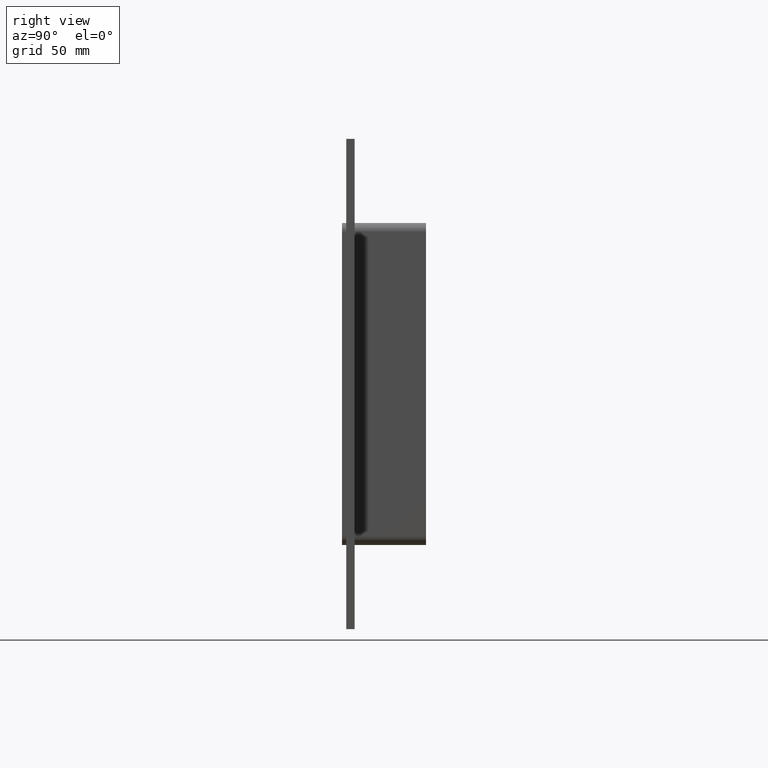
[diagram: clean part render]
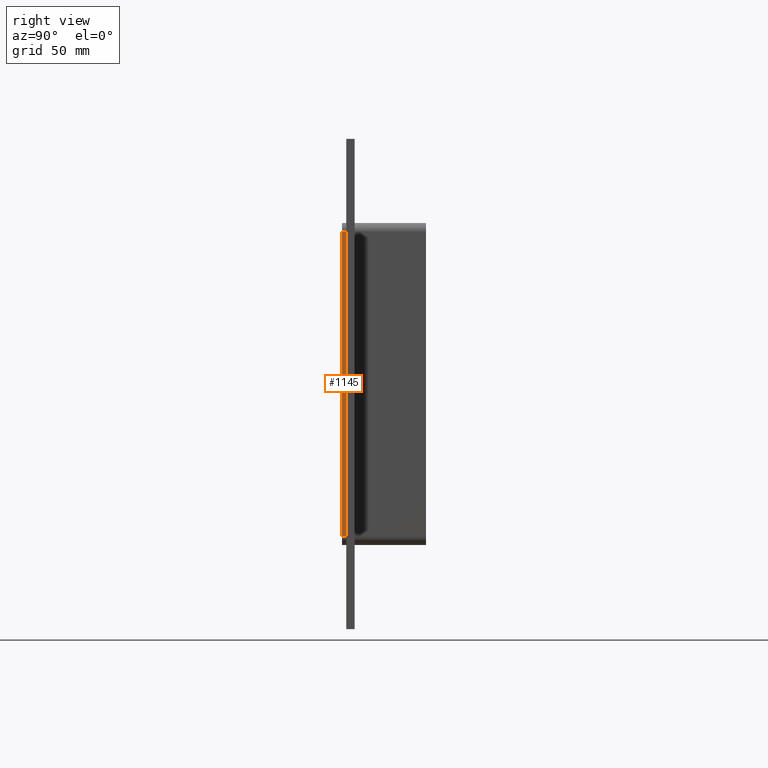
[diagram: same view with one face highlighted and labeled with its STEP entity id]
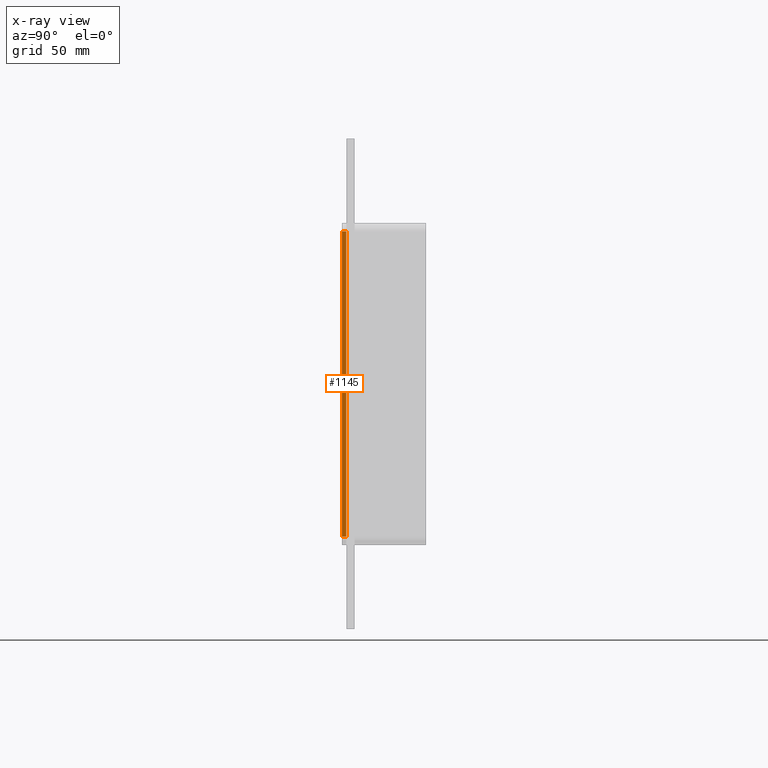
[diagram: x-ray of the same camera — body ghosted, the highlighted face saturated]
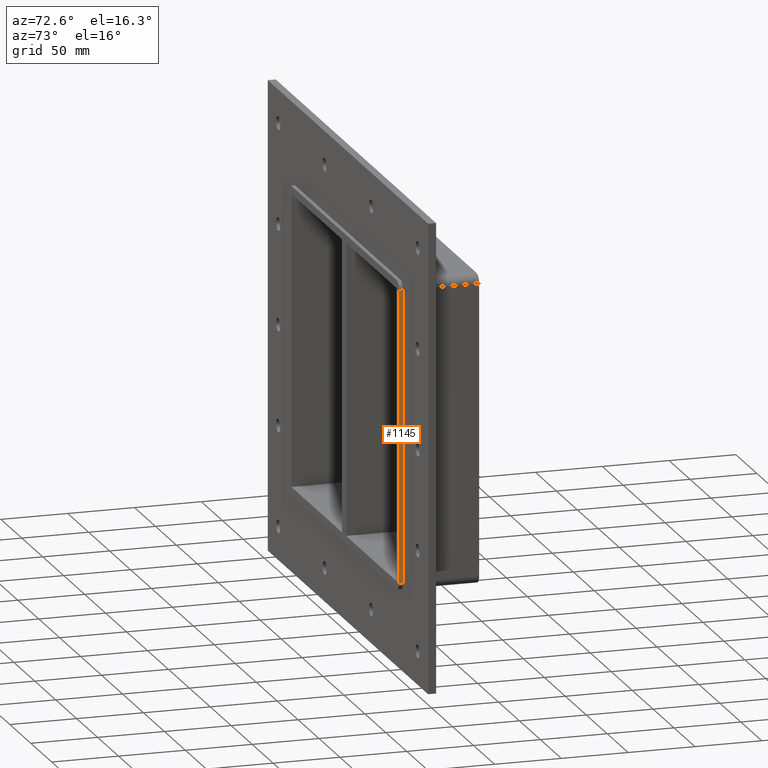
[diagram: same view with one face highlighted and labeled with its STEP entity id]
A machine part, right view. The second image highlights one B-rep face of the part: STEP entity #1145.
The next image is the same camera in x-ray: the body ghosted, the highlighted face saturated — about 0% of this face is hidden behind the body in this view.
A second angle (auxiliary view) of the same face is appended — the face is thin or edge-on in the first view.
In plain terms, the highlighted planar face has unit normal (1, 0, 0).
Its self-contained STEP definition (entity closure, byte-faithful):
#933=CARTESIAN_POINT('',(131.5,0.0,109.0));
#934=VERTEX_POINT('',#933);
#942=CARTESIAN_POINT('',(131.5,0.0,-108.99999999999999));
#943=VERTEX_POINT('',#942);
#944=CARTESIAN_POINT('',(131.5,0.0,-109.0));
#945=DIRECTION('',(0.0,0.0,1.0));
#946=VECTOR('',#945,218.0);
#947=LINE('',#944,#946);
#948=EDGE_CURVE('',#943,#934,#947,.T.);
#1072=CARTESIAN_POINT('',(131.5,-3.0,109.0));
#1073=VERTEX_POINT('',#1072);
#1081=CARTESIAN_POINT('',(131.5,-3.0,109.0));
#1082=DIRECTION('',(0.0,1.0,0.0));
#1083=VECTOR('',#1082,3.0);
#1084=LINE('',#1081,#1083);
#1085=EDGE_CURVE('',#1073,#934,#1084,.T.);
#1122=CARTESIAN_POINT('',(131.5,0.0,115.0));
#1123=DIRECTION('',(1.0,0.0,0.0));
#1124=DIRECTION('',(0.0,0.0,-1.0));
#1125=AXIS2_PLACEMENT_3D('',#1122,#1123,#1124);
#1126=PLANE('',#1125);
#1127=ORIENTED_EDGE('',*,*,#948,.T.);
#1128=ORIENTED_EDGE('',*,*,#1085,.F.);
#1129=CARTESIAN_POINT('',(131.5,-3.0,-108.99999999999999));
#1130=VERTEX_POINT('',#1129);
#1131=CARTESIAN_POINT('',(131.5,-3.0,-109.0));
#1132=DIRECTION('',(0.0,0.0,1.0));
#1133=VECTOR('',#1132,218.0);
#1134=LINE('',#1131,#1133);
#1135=EDGE_CURVE('',#1130,#1073,#1134,.T.);
#1136=ORIENTED_EDGE('',*,*,#1135,.F.);
#1137=CARTESIAN_POINT('',(131.5,0.0,-108.99999999999999));
#1138=DIRECTION('',(0.0,-1.0,0.0));
#1139=VECTOR('',#1138,3.0);
#1140=LINE('',#1137,#1139);
#1141=EDGE_CURVE('',#943,#1130,#1140,.T.);
#1142=ORIENTED_EDGE('',*,*,#1141,.F.);
#1143=EDGE_LOOP('',(#1127,#1128,#1136,#1142));
#1144=FACE_OUTER_BOUND('',#1143,.T.);
#1145=ADVANCED_FACE('',(#1144),#1126,.T.);